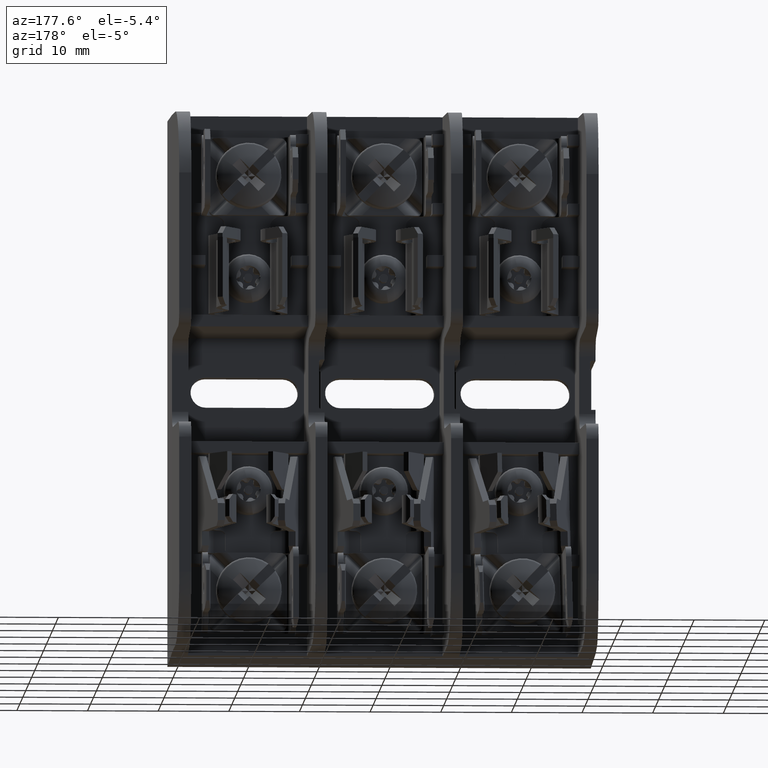
[diagram: clean part render]
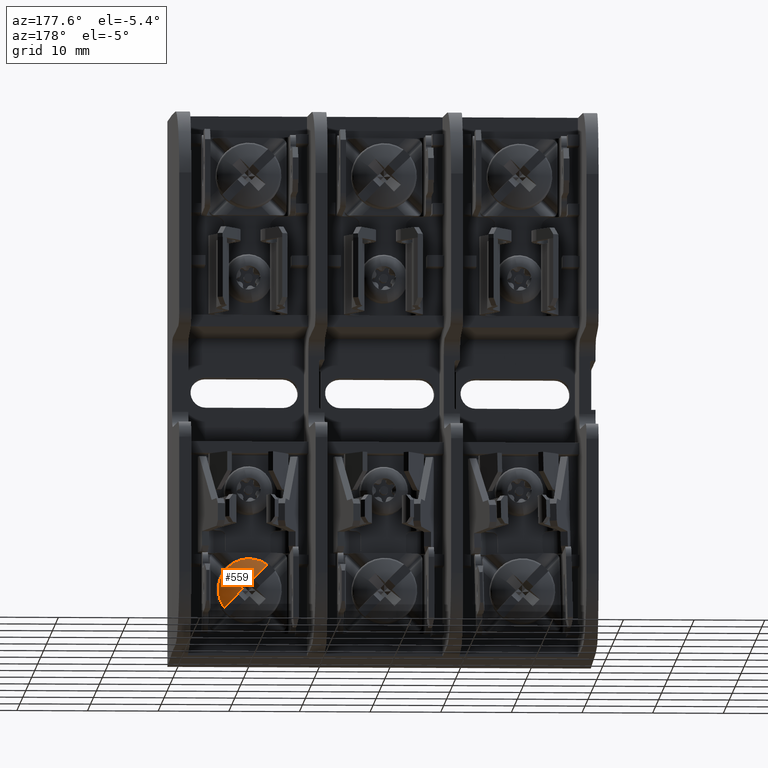
[diagram: same view with one face highlighted and labeled with its STEP entity id]
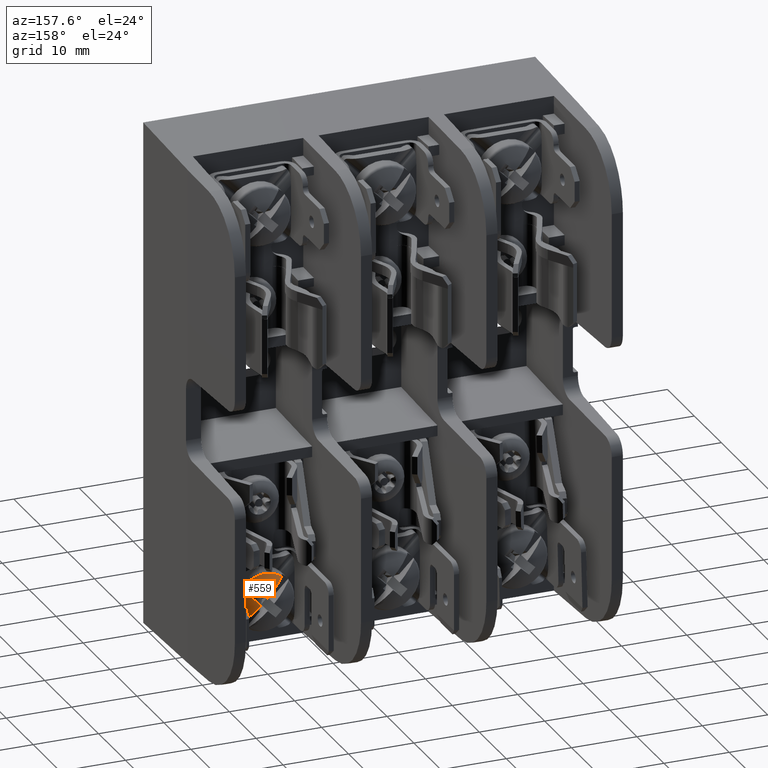
[diagram: same view with one face highlighted and labeled with its STEP entity id]
A machine part, auxiliary view. The second image highlights one B-rep face of the part: STEP entity #559.
A second angle (auxiliary view) of the same face is appended — the face is thin or edge-on in the first view.
In plain terms, the highlighted toroidal blend (fillet) surface has major radius 0.4692 mm and minor (blend) radius 7.7487 mm.
Its self-contained STEP definition (entity closure, byte-faithful):
#559 = ADVANCED_FACE ( 'NONE', ( #59246 ), #104306, .T. ) ;
#2370 = CARTESIAN_POINT ( 'NONE',  ( 0.08318443585852562700, 0.7793910382844490000, -1.117706437106734700 ) ) ;
#3367 = DIRECTION ( 'NONE',  ( -8.009328021535200100E-017, -1.000000000000000000, 5.751958816026026700E-017 ) ) ;
#4361 = CARTESIAN_POINT ( 'NONE',  ( -0.1010455379520085300, 0.7468833758505750700, -1.022063589082733000 ) ) ;
#8887 = CARTESIAN_POINT ( 'NONE',  ( 0.07416533084925090700, 0.7822231048215132500, -1.197274457883990700 ) ) ;
#10306 = B_SPLINE_CURVE_WITH_KNOTS ( 'NONE', 3,
 ( #106562, #129797, #30342, #108026 ),
 .UNSPECIFIED., .F., .F.,
 ( 4, 4 ),
 ( 1.999999999988840300E-007, 0.001397199999999999900 ),
 .UNSPECIFIED. ) ;
#13383 = VERTEX_POINT ( 'NONE', #103183 ) ;
#14917 = EDGE_LOOP ( 'NONE', ( #43398, #89576, #22220, #43793, #126726, #104082 ) ) ;
#19102 = CARTESIAN_POINT ( 'NONE',  ( 0.03559516246208747900, 0.7821357742797551100, -1.087513964572652600 ) ) ;
#20007 = CARTESIAN_POINT ( 'NONE',  ( 0.04777125151356005600, 0.7874038987730543900, -1.170880378548300400 ) ) ;
#20672 = AXIS2_PLACEMENT_3D ( 'NONE', #25233, #3367, #81097 ) ;
#20726 = CARTESIAN_POINT ( 'NONE',  ( 0.03889087296526044100, 0.7879995818802347800, -1.162000000000000600 ) ) ;
#22220 = ORIENTED_EDGE ( 'NONE', *, *, #32330, .T. ) ;
#23442 = VERTEX_POINT ( 'NONE', #127420 ) ;
#25233 = CARTESIAN_POINT ( 'NONE',  ( 9.255622805549168600E-017, 0.4836162420621821800, -1.162000000000000600 ) ) ;
#26238 = CARTESIAN_POINT ( 'NONE',  ( -7.234304166676917200E-017, 0.7879995818802346700, -1.123109127034740400 ) ) ;
#30285 = CARTESIAN_POINT ( 'NONE',  ( 0.05287281563838314900, 0.7758859648246239100, -1.070236311396356700 ) ) ;
#30342 = CARTESIAN_POINT ( 'NONE',  ( 0.06654036072922392400, 0.7770224874820544900, -1.082496014949022800 ) ) ;
#31796 = VERTEX_POINT ( 'NONE', #114198 ) ;
#32330 = EDGE_CURVE ( 'NONE', #49132, #31796, #74953, .T. ) ;
#34486 = B_SPLINE_CURVE_WITH_KNOTS ( 'NONE', 3,
 ( #118630, #85180, #85666, #19102, #96836, #30285 ),
 .UNSPECIFIED., .F., .F.,
 ( 4, 2, 4 ),
 ( 0.0006986399129727101600, 0.001672849859525218900, 0.002647059806077727400 ),
 .UNSPECIFIED. ) ;
#35467 = CARTESIAN_POINT ( 'NONE',  ( 1.136629829847642300E-016, 0.7468833758505230000, -1.162000000000000600 ) ) ;
#36566 = VERTEX_POINT ( 'NONE', #106532 ) ;
#43398 = ORIENTED_EDGE ( 'NONE', *, *, #90323, .F. ) ;
#43793 = ORIENTED_EDGE ( 'NONE', *, *, #128527, .T. ) ;
#46608 = CARTESIAN_POINT ( 'NONE',  ( 0.03889087296526044100, 0.7879995818802347800, -1.162000000000000600 ) ) ;
#46632 = DIRECTION ( 'NONE',  ( 0.7071067811865510100, 0.0000000000000000000, -0.7071067811865439100 ) ) ;
#49132 = VERTEX_POINT ( 'NONE', #20726 ) ;
#59246 = FACE_OUTER_BOUND ( 'NONE', #14917, .T. ) ;
#59795 = CARTESIAN_POINT ( 'NONE',  ( -0.03525633780349506100, 0.7829986190435412900, -1.087852789231246000 ) ) ;
#64276 = CARTESIAN_POINT ( 'NONE',  ( 0.1079740572686523100, 0.7685476357907414800, -1.231083184303391400 ) ) ;
#68977 = CARTESIAN_POINT ( 'NONE',  ( 0.07448603542734778800, 0.7821357742797551100, -1.126404837537912500 ) ) ;
#70945 = CARTESIAN_POINT ( 'NONE',  ( -0.08579795732048527100, 0.7593465137927585300, -1.037311169714256300 ) ) ;
#74953 = B_SPLINE_CURVE_WITH_KNOTS ( 'NONE', 3,
 ( #46608, #89787, #135337, #68977, #2370, #80086 ),
 .UNSPECIFIED., .F., .F.,
 ( 4, 2, 4 ),
 ( 0.0006986399129727082100, 0.001672849859525217600, 0.002647059806077726900 ),
 .UNSPECIFIED. ) ;
#75404 = CARTESIAN_POINT ( 'NONE',  ( 0.08276547411244286600, 0.7795273047678896700, -1.205874601147182800 ) ) ;
#78072 = EDGE_CURVE ( 'NONE', #36566, #98186, #79101, .T. ) ;
#79101 = B_SPLINE_CURVE_WITH_KNOTS ( 'NONE', 3,
 ( #26238, #125249, #59795, #137361, #70945, #4361 ),
 .UNSPECIFIED., .F., .F.,
 ( 4, 2, 4 ),
 ( 0.0006986399129727086400, 0.002621764868682101900, 0.004544889824391495000 ),
 .UNSPECIFIED. ) ;
#80086 = CARTESIAN_POINT ( 'NONE',  ( 0.09176368860364346500, 0.7758859648246239100, -1.109127184361616600 ) ) ;
#81097 = DIRECTION ( 'NONE',  ( 0.7071067811865511300, -9.730699240692731500E-017, -0.7071067811865439100 ) ) ;
#85180 = CARTESIAN_POINT ( 'NONE',  ( 0.009033527600385095300, 0.7873936257534178700, -1.114075599434355000 ) ) ;
#85650 = EDGE_CURVE ( 'NONE', #13383, #49132, #98668, .T. ) ;
#85666 = CARTESIAN_POINT ( 'NONE',  ( 0.01796661848236768400, 0.7861463843629071800, -1.105142508552372500 ) ) ;
#86555 = CARTESIAN_POINT ( 'NONE',  ( 0.05667027029087425700, 0.7861741869085231400, -1.179779397325614300 ) ) ;
#89576 = ORIENTED_EDGE ( 'NONE', *, *, #85650, .T. ) ;
#89787 = CARTESIAN_POINT ( 'NONE',  ( 0.04792440056564542500, 0.7873936257534178700, -1.152966472399615400 ) ) ;
#90323 = EDGE_CURVE ( 'NONE', #13383, #98186, #136288, .T. ) ;
#96836 = CARTESIAN_POINT ( 'NONE',  ( 0.04429356289326526900, 0.7793910382844490000, -1.078815564141474500 ) ) ;
#97745 = CARTESIAN_POINT ( 'NONE',  ( 0.03889087296526044100, 0.7879995818802347800, -1.162000000000000600 ) ) ;
#98186 = VERTEX_POINT ( 'NONE', #135351 ) ;
#98668 = B_SPLINE_CURVE_WITH_KNOTS ( 'NONE', 3,
 ( #119511, #108381, #130656, #64276, #141819, #75404, #8887, #86555, #20007, #97745 ),
 .UNSPECIFIED., .F., .F.,
 ( 4, 2, 2, 2, 4 ),
 ( 0.04607979494623471600, 0.04703087166692522500, 0.04798194838761572800, 0.04893302510830623700, 0.04988410182899674600 ),
 .UNSPECIFIED. ) ;
#103183 = CARTESIAN_POINT ( 'NONE',  ( 0.1399364109172543900, 0.7468833758505230000, -1.263045537951993800 ) ) ;
#104082 = ORIENTED_EDGE ( 'NONE', *, *, #78072, .T. ) ;
#104306 = TOROIDAL_SURFACE ( 'NONE', #20672, 0.01847327334936996900, 0.3050673629427881900 ) ;
#106532 = CARTESIAN_POINT ( 'NONE',  ( -7.234304166676917200E-017, 0.7879995818802346700, -1.123109127034740400 ) ) ;
#106562 = CARTESIAN_POINT ( 'NONE',  ( 0.09176368860364346500, 0.7758859648246239100, -1.109127184361616600 ) ) ;
#108026 = CARTESIAN_POINT ( 'NONE',  ( 0.05287281563838314900, 0.7758859648246239100, -1.070236311396356700 ) ) ;
#108381 = CARTESIAN_POINT ( 'NONE',  ( 0.1322935110517281000, 0.7531305646737723700, -1.255402638086467600 ) ) ;
#113120 = DIRECTION ( 'NONE',  ( -8.009328021535200100E-017, -1.000000000000000000, 5.751958816026026700E-017 ) ) ;
#114198 = CARTESIAN_POINT ( 'NONE',  ( 0.09176368860364346500, 0.7758859648246239100, -1.109127184361616600 ) ) ;
#118630 = CARTESIAN_POINT ( 'NONE',  ( -7.234304166676917200E-017, 0.7879995818802346700, -1.123109127034740400 ) ) ;
#119511 = CARTESIAN_POINT ( 'NONE',  ( 0.1399364109172543900, 0.7468833758505230000, -1.263045537951993800 ) ) ;
#120638 = AXIS2_PLACEMENT_3D ( 'NONE', #35467, #113120, #46632 ) ;
#123884 = EDGE_CURVE ( 'NONE', #36566, #23442, #34486, .T. ) ;
#125249 = CARTESIAN_POINT ( 'NONE',  ( -0.01783250358700190500, 0.7868034030137895900, -1.105276623447738700 ) ) ;
#126726 = ORIENTED_EDGE ( 'NONE', *, *, #123884, .F. ) ;
#127420 = CARTESIAN_POINT ( 'NONE',  ( 0.05287281563838314900, 0.7758859648246239100, -1.070236311396356700 ) ) ;
#128527 = EDGE_CURVE ( 'NONE', #31796, #23442, #10306, .T. ) ;
#129797 = CARTESIAN_POINT ( 'NONE',  ( 0.07950398505097738800, 0.7770224874820544900, -1.095459639270776100 ) ) ;
#130656 = CARTESIAN_POINT ( 'NONE',  ( 0.1242790515920366300, 0.7587808722978998100, -1.247388178626775500 ) ) ;
#135337 = CARTESIAN_POINT ( 'NONE',  ( 0.05685749144762799300, 0.7861463843629071800, -1.144033381517632500 ) ) ;
#135351 = CARTESIAN_POINT ( 'NONE',  ( -0.1010455379520085300, 0.7468833758505750700, -1.022063589082733000 ) ) ;
#136288 = CIRCLE ( 'NONE', #120638, 0.1726047503413805400 ) ;
#137361 = CARTESIAN_POINT ( 'NONE',  ( -0.06915227189504313800, 0.7693162797722648000, -1.053956855139698100 ) ) ;
#141819 = CARTESIAN_POINT ( 'NONE',  ( 0.09966965512439192300, 0.7726886798784674500, -1.222778782159131600 ) ) ;